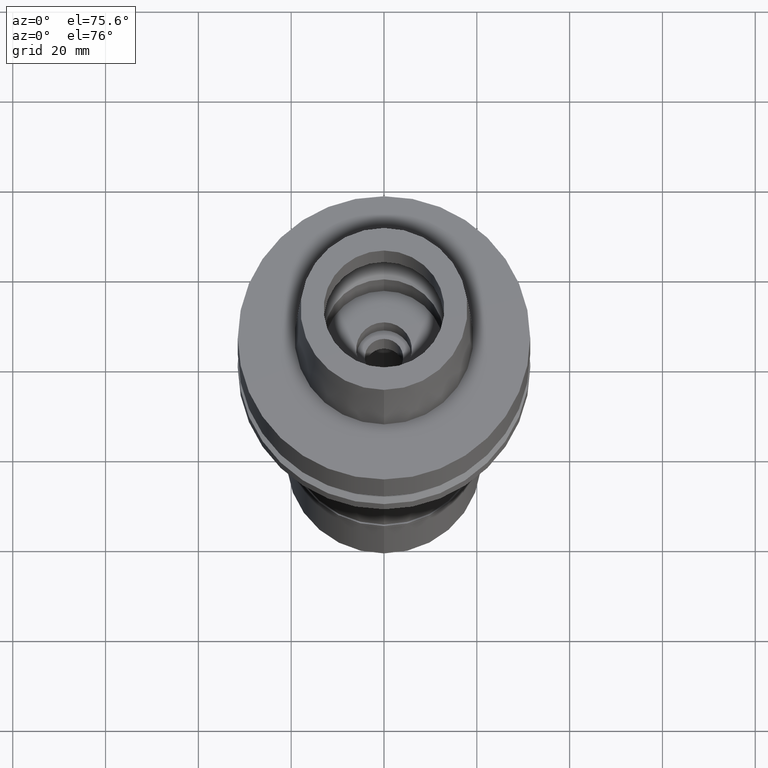
[diagram: clean part render]
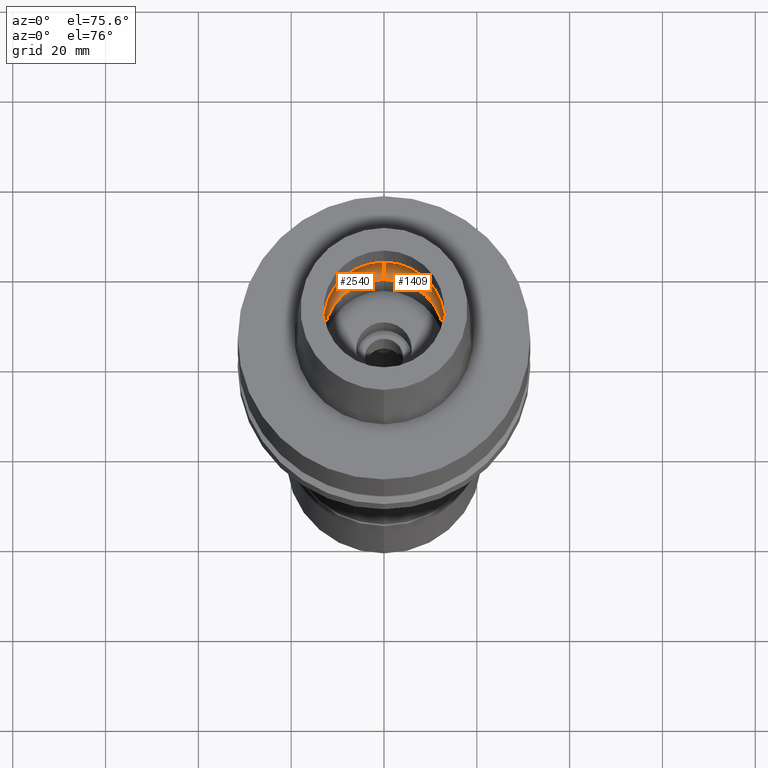
[diagram: same view with one multi-face feature highlighted, each face labeled with its STEP entity id]
A machine part, auxiliary view. The highlighted faces form ONE feature: a constant-radius fillet chain: 2 tangent blend faces with common blend radius 6 mm. The faces share edges in the B-rep.
Their STEP definitions:
[1] entity #1409 (Torus):
#59 = AXIS2_PLACEMENT_3D ( 'NONE', #1026, #1045, #1240 ) ;
#95 = EDGE_CURVE ( 'NONE', #397, #1376, #1999, .T. ) ;
#289 = TOROIDAL_SURFACE ( 'NONE', #618, 10.00000000000000000, 6.000000000000000000 ) ;
#331 = CARTESIAN_POINT ( 'NONE',  ( 0.0000000000000000000, 13.00000000000000000, 0.04984757729343999855 ) ) ;
#397 = VERTEX_POINT ( 'NONE', #837 ) ;
#486 = DIRECTION ( 'NONE',  ( 0.0000000000000000000, 0.0000000000000000000, 1.000000000000000000 ) ) ;
#523 = CIRCLE ( 'NONE', #1926, 13.00000000000000000 ) ;
#618 = AXIS2_PLACEMENT_3D ( 'NONE', #1804, #486, #1838 ) ;
#629 = VERTEX_POINT ( 'NONE', #331 ) ;
#667 = CARTESIAN_POINT ( 'NONE',  ( 0.0000000000000000000, 16.00000000000000000, 5.245999999999999552 ) ) ;
#768 = CARTESIAN_POINT ( 'NONE',  ( 0.0000000000000000000, -10.00000000000000000, 5.245999999999999552 ) ) ;
#801 = VERTEX_POINT ( 'NONE', #667 ) ;
#837 = CARTESIAN_POINT ( 'NONE',  ( 0.0000000000000000000, -13.00000000000000000, 0.04984757729340000276 ) ) ;
#867 = CARTESIAN_POINT ( 'NONE',  ( 0.0000000000000000000, 0.0000000000000000000, 0.04984757729340000276 ) ) ;
#922 = DIRECTION ( 'NONE',  ( 1.000000000000000000, 0.0000000000000000000, 0.0000000000000000000 ) ) ;
#931 = AXIS2_PLACEMENT_3D ( 'NONE', #768, #2524, #2537 ) ;
#946 = CIRCLE ( 'NONE', #1325, 6.000000000000000000 ) ;
#1026 = CARTESIAN_POINT ( 'NONE',  ( 0.0000000000000000000, 0.0000000000000000000, 5.245999999999999552 ) ) ;
#1045 = DIRECTION ( 'NONE',  ( 0.0000000000000000000, 0.0000000000000000000, -1.000000000000000000 ) ) ;
#1157 = EDGE_CURVE ( 'NONE', #801, #1376, #2735, .T. ) ;
#1240 = DIRECTION ( 'NONE',  ( 0.0000000000000000000, 1.000000000000000000, 0.0000000000000000000 ) ) ;
#1325 = AXIS2_PLACEMENT_3D ( 'NONE', #2010, #922, #2462 ) ;
#1376 = VERTEX_POINT ( 'NONE', #2205 ) ;
#1409 = ADVANCED_FACE ( 'NONE', ( #1755 ), #289, .F. ) ;
#1454 = ORIENTED_EDGE ( 'NONE', *, *, #2622, .F. ) ;
#1543 = DIRECTION ( 'NONE',  ( 0.0000000000000000000, 0.0000000000000000000, 1.000000000000000000 ) ) ;
#1631 = ORIENTED_EDGE ( 'NONE', *, *, #95, .T. ) ;
#1755 = FACE_OUTER_BOUND ( 'NONE', #2410, .T. ) ;
#1804 = CARTESIAN_POINT ( 'NONE',  ( 0.0000000000000000000, 0.0000000000000000000, 5.245999999999999552 ) ) ;
#1838 = DIRECTION ( 'NONE',  ( 0.0000000000000000000, 1.000000000000000000, 0.0000000000000000000 ) ) ;
#1926 = AXIS2_PLACEMENT_3D ( 'NONE', #867, #1543, #2408 ) ;
#1999 = CIRCLE ( 'NONE', #931, 6.000000000000000000 ) ;
#2010 = CARTESIAN_POINT ( 'NONE',  ( 0.0000000000000000000, 10.00000000000000000, 5.245999999999999552 ) ) ;
#2205 = CARTESIAN_POINT ( 'NONE',  ( 0.0000000000000000000, -16.00000000000000000, 5.245999999999999552 ) ) ;
#2274 = ORIENTED_EDGE ( 'NONE', *, *, #1157, .F. ) ;
#2408 = DIRECTION ( 'NONE',  ( 0.0000000000000000000, -1.000000000000000000, 0.0000000000000000000 ) ) ;
#2410 = EDGE_LOOP ( 'NONE', ( #1454, #1631, #2274, #2652 ) ) ;
#2462 = DIRECTION ( 'NONE',  ( 0.0000000000000000000, 0.5000000000000169864, -0.8660254037844289376 ) ) ;
#2524 = DIRECTION ( 'NONE',  ( -1.000000000000000000, 0.0000000000000000000, 0.0000000000000000000 ) ) ;
#2537 = DIRECTION ( 'NONE',  ( 0.0000000000000000000, -0.5000000000000169864, -0.8660254037844289376 ) ) ;
#2622 = EDGE_CURVE ( 'NONE', #397, #629, #523, .T. ) ;
#2652 = ORIENTED_EDGE ( 'NONE', *, *, #2733, .F. ) ;
#2733 = EDGE_CURVE ( 'NONE', #629, #801, #946, .T. ) ;
#2735 = CIRCLE ( 'NONE', #59, 16.00000000000000000 ) ;
[2] entity #2540 (Torus):
#95 = EDGE_CURVE ( 'NONE', #397, #1376, #1999, .T. ) ;
#331 = CARTESIAN_POINT ( 'NONE',  ( 0.0000000000000000000, 13.00000000000000000, 0.04984757729343999855 ) ) ;
#374 = FACE_OUTER_BOUND ( 'NONE', #2810, .T. ) ;
#397 = VERTEX_POINT ( 'NONE', #837 ) ;
#568 = CIRCLE ( 'NONE', #986, 13.00000000000000000 ) ;
#629 = VERTEX_POINT ( 'NONE', #331 ) ;
#667 = CARTESIAN_POINT ( 'NONE',  ( 0.0000000000000000000, 16.00000000000000000, 5.245999999999999552 ) ) ;
#688 = CARTESIAN_POINT ( 'NONE',  ( 0.0000000000000000000, 0.0000000000000000000, 5.245999999999999552 ) ) ;
#757 = TOROIDAL_SURFACE ( 'NONE', #1515, 10.00000000000000000, 6.000000000000000000 ) ;
#768 = CARTESIAN_POINT ( 'NONE',  ( 0.0000000000000000000, -10.00000000000000000, 5.245999999999999552 ) ) ;
#801 = VERTEX_POINT ( 'NONE', #667 ) ;
#837 = CARTESIAN_POINT ( 'NONE',  ( 0.0000000000000000000, -13.00000000000000000, 0.04984757729340000276 ) ) ;
#922 = DIRECTION ( 'NONE',  ( 1.000000000000000000, 0.0000000000000000000, 0.0000000000000000000 ) ) ;
#931 = AXIS2_PLACEMENT_3D ( 'NONE', #768, #2524, #2537 ) ;
#946 = CIRCLE ( 'NONE', #1325, 6.000000000000000000 ) ;
#951 = CARTESIAN_POINT ( 'NONE',  ( 0.0000000000000000000, 0.0000000000000000000, 0.04984757729340000276 ) ) ;
#986 = AXIS2_PLACEMENT_3D ( 'NONE', #951, #2708, #1803 ) ;
#1092 = ORIENTED_EDGE ( 'NONE', *, *, #2726, .F. ) ;
#1144 = DIRECTION ( 'NONE',  ( 0.0000000000000000000, -1.000000000000000000, 0.0000000000000000000 ) ) ;
#1325 = AXIS2_PLACEMENT_3D ( 'NONE', #2010, #922, #2462 ) ;
#1376 = VERTEX_POINT ( 'NONE', #2205 ) ;
#1383 = DIRECTION ( 'NONE',  ( 0.0000000000000000000, 0.0000000000000000000, -1.000000000000000000 ) ) ;
#1426 = CIRCLE ( 'NONE', #2564, 16.00000000000000000 ) ;
#1515 = AXIS2_PLACEMENT_3D ( 'NONE', #1746, #1927, #2609 ) ;
#1746 = CARTESIAN_POINT ( 'NONE',  ( 0.0000000000000000000, 0.0000000000000000000, 5.245999999999999552 ) ) ;
#1803 = DIRECTION ( 'NONE',  ( 0.0000000000000000000, 1.000000000000000000, 0.0000000000000000000 ) ) ;
#1927 = DIRECTION ( 'NONE',  ( 0.0000000000000000000, 0.0000000000000000000, 1.000000000000000000 ) ) ;
#1999 = CIRCLE ( 'NONE', #931, 6.000000000000000000 ) ;
#2010 = CARTESIAN_POINT ( 'NONE',  ( 0.0000000000000000000, 10.00000000000000000, 5.245999999999999552 ) ) ;
#2165 = ORIENTED_EDGE ( 'NONE', *, *, #2210, .F. ) ;
#2205 = CARTESIAN_POINT ( 'NONE',  ( 0.0000000000000000000, -16.00000000000000000, 5.245999999999999552 ) ) ;
#2210 = EDGE_CURVE ( 'NONE', #629, #397, #568, .T. ) ;
#2291 = ORIENTED_EDGE ( 'NONE', *, *, #2733, .T. ) ;
#2462 = DIRECTION ( 'NONE',  ( 0.0000000000000000000, 0.5000000000000169864, -0.8660254037844289376 ) ) ;
#2524 = DIRECTION ( 'NONE',  ( -1.000000000000000000, 0.0000000000000000000, 0.0000000000000000000 ) ) ;
#2537 = DIRECTION ( 'NONE',  ( 0.0000000000000000000, -0.5000000000000169864, -0.8660254037844289376 ) ) ;
#2540 = ADVANCED_FACE ( 'NONE', ( #374 ), #757, .F. ) ;
#2559 = ORIENTED_EDGE ( 'NONE', *, *, #95, .F. ) ;
#2564 = AXIS2_PLACEMENT_3D ( 'NONE', #688, #1383, #1144 ) ;
#2609 = DIRECTION ( 'NONE',  ( 0.0000000000000000000, 1.000000000000000000, 0.0000000000000000000 ) ) ;
#2708 = DIRECTION ( 'NONE',  ( 0.0000000000000000000, 0.0000000000000000000, 1.000000000000000000 ) ) ;
#2726 = EDGE_CURVE ( 'NONE', #1376, #801, #1426, .T. ) ;
#2733 = EDGE_CURVE ( 'NONE', #629, #801, #946, .T. ) ;
#2810 = EDGE_LOOP ( 'NONE', ( #1092, #2559, #2165, #2291 ) ) ;